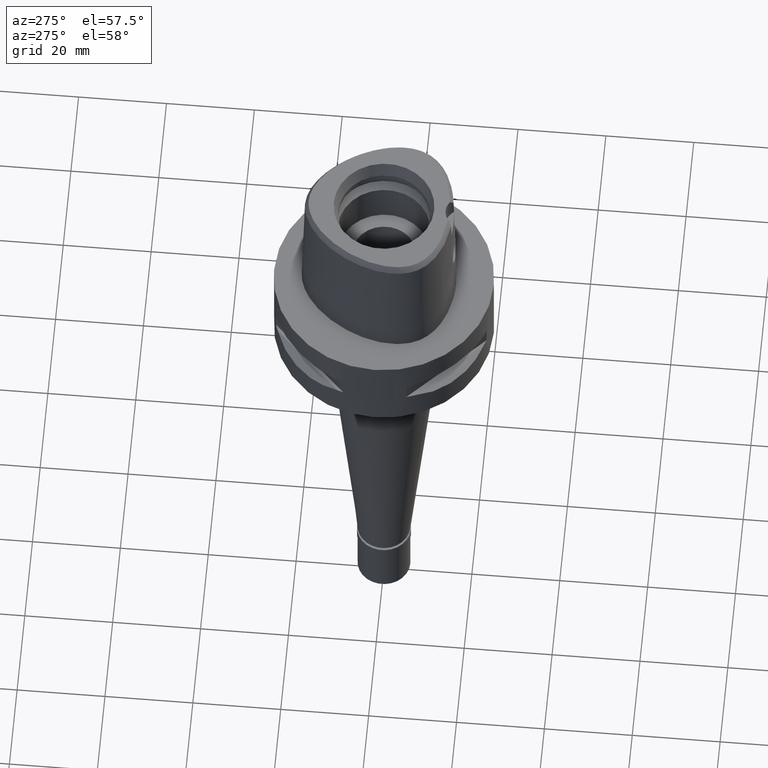
[diagram: clean part render]
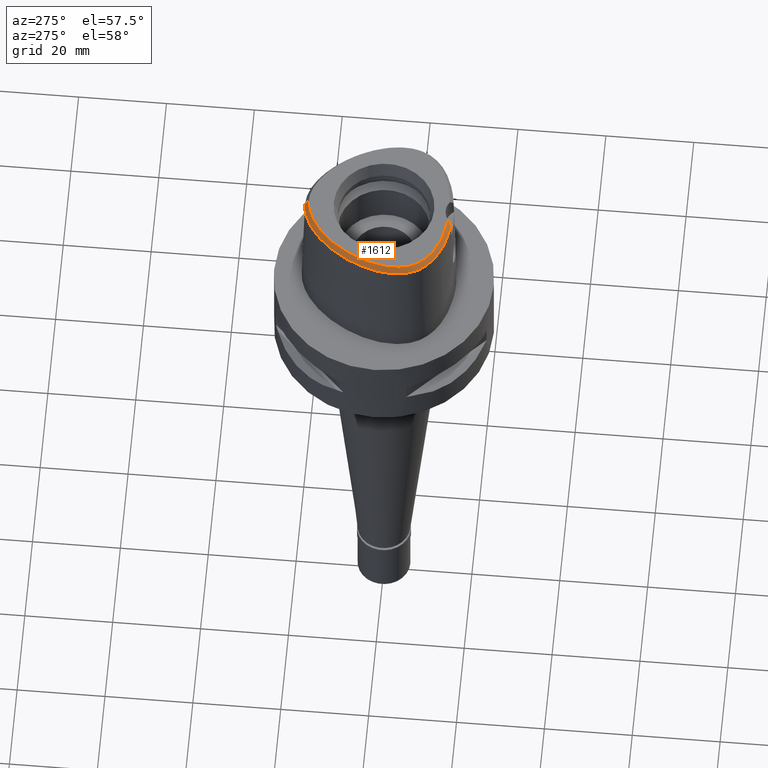
[diagram: same view with one face highlighted and labeled with its STEP entity id]
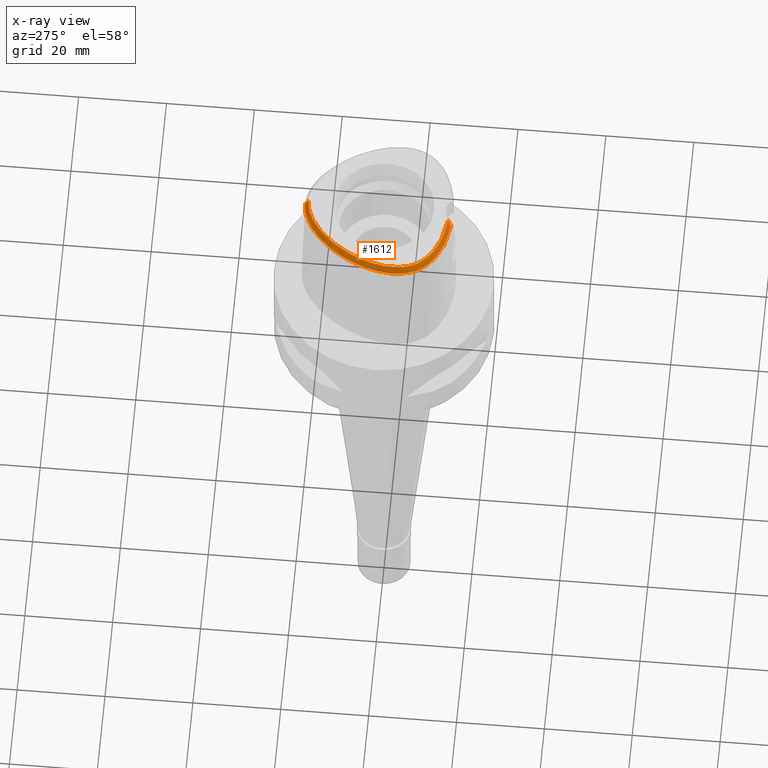
[diagram: x-ray of the same camera — body ghosted, the highlighted face saturated]
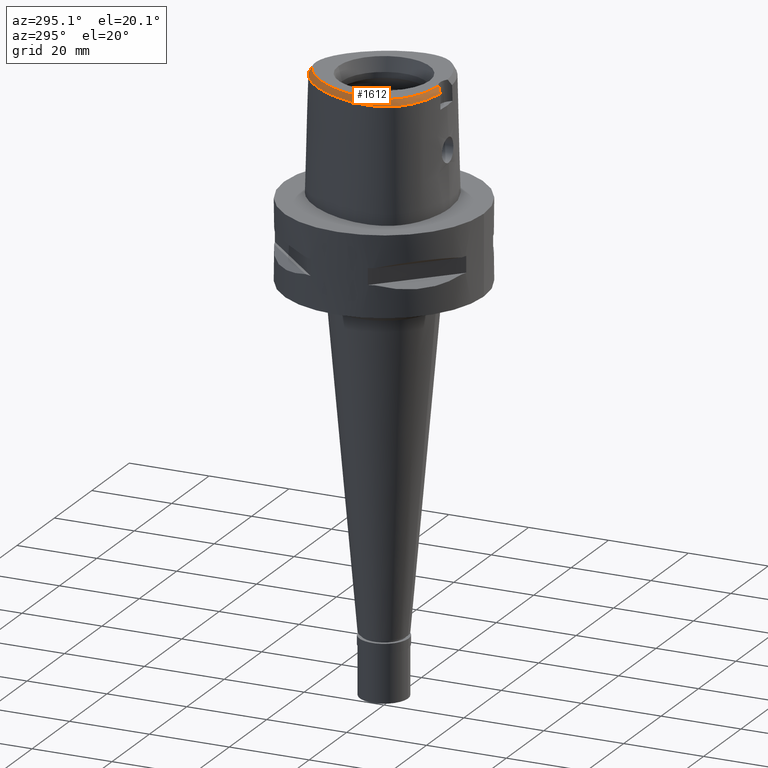
[diagram: same view with one face highlighted and labeled with its STEP entity id]
A machine part, auxiliary view. The second image highlights one B-rep face of the part: STEP entity #1612.
The next image is the same camera in x-ray: the body ghosted, the highlighted face saturated — about 0% of this face is hidden behind the body in this view.
A second angle (auxiliary view) of the same face is appended — the face is thin or edge-on in the first view.
In plain terms, the highlighted face is a freeform B-spline surface patch.
Its self-contained STEP definition (entity closure, byte-faithful):
#4 = CARTESIAN_POINT ( 'NONE',  ( -9.750168658358866480, -12.92810664733624471, 29.99999999999975486 ) ) ;
#16 = CARTESIAN_POINT ( 'NONE',  ( -16.28722263058000053, 1.905588744011000202, 28.35056743878999796 ) ) ;
#37 = CARTESIAN_POINT ( 'NONE',  ( -6.303691439121000273E-11, 17.15328888647999861, 30.00000000000000000 ) ) ;
#43 = CARTESIAN_POINT ( 'NONE',  ( -12.59173003849000061, -11.05352293352999915, 30.17009129306999782 ) ) ;
#65 = CARTESIAN_POINT ( 'NONE',  ( -11.85389994273000092, -12.83453179391999832, 28.35056449152000013 ) ) ;
#80 = CARTESIAN_POINT ( 'NONE',  ( -0.5679008307149224777, 17.14013367087309447, 29.99999999999387512 ) ) ;
#88 = CARTESIAN_POINT ( 'NONE',  ( -15.26247822636999985, -9.049129490852999780, 28.95707308115999723 ) ) ;
#96 = CARTESIAN_POINT ( 'NONE',  ( -6.303691439121000273E-11, 17.15328888647999861, 30.00000000000000000 ) ) ;
#104 = B_SPLINE_CURVE_WITH_KNOTS ( 'NONE', 3,
 ( #2876, #4342, #3874, #565, #2038, #4363, #1792, #4751, #2248, #1527, #1467, #383, #2949, #2537, #774, #4089, #2517, #4385, #1889, #3986, #2998, #726 ),
 .UNSPECIFIED., .F., .F.,
 ( 4, 1, 1, 1, 1, 1, 1, 1, 1, 1, 1, 1, 1, 1, 1, 1, 1, 1, 1, 4 ),
 ( 0.0000000000000000000, 0.03108635432772781371, 0.1191694130251493983, 0.1632109423738073717, 0.2072524717224653590, 0.2512940010712290673, 0.2733147657454522705, 0.2953355304197813336, 0.3173562950942159788, 0.3393770597685449308, 0.3834185891172029459, 0.4274601184658609054, 0.4715016478145189205, 0.5595847065118348951, 0.6476677652092563964, 0.7357508239065724265, 0.8238338826038883456, 0.9119169413012888636, 0.9559584706499574258, 1.000000000000000000 ),
 .UNSPECIFIED. ) ;
#114 = CARTESIAN_POINT ( 'NONE',  ( -11.67357936521000106, -12.54628568380000075, 28.95707339863999863 ) ) ;
#129 = CARTESIAN_POINT ( 'NONE',  ( -1.772880577021780812, 16.97196055715948049, 29.99999999999553779 ) ) ;
#137 = CARTESIAN_POINT ( 'NONE',  ( -15.61879289774000057, -6.510694683599999699, 30.17009128750999736 ) ) ;
#199 = CARTESIAN_POINT ( 'NONE',  ( -3.385290767843000204, 17.47759187830000016, 28.35056283004999855 ) ) ;
#220 = CARTESIAN_POINT ( 'NONE',  ( -0.5850065184217999592, 17.38422776575999862, 29.56358208161000078 ) ) ;
#241 = CARTESIAN_POINT ( 'NONE',  ( -0.04056532553149000409, 17.06316671231999749, 30.17009124918000040 ) ) ;
#269 = CARTESIAN_POINT ( 'NONE',  ( -9.194679903596000514, 13.74370386342999950, 28.35056650261000044 ) ) ;
#278 = CARTESIAN_POINT ( 'NONE',  ( -4.135464916807999991, -14.50502973496999992, 30.17009133634999785 ) ) ;
#280 = CARTESIAN_POINT ( 'NONE',  ( -15.71065119878993421, -6.536303815289310926, 29.99999999999440092 ) ) ;
#287 = CARTESIAN_POINT ( 'NONE',  ( -16.62226688940999964, -1.595571416314999880, 28.95707264753000132 ) ) ;
#299 = CARTESIAN_POINT ( 'NONE',  ( -13.18915979441350217, -10.65722997876278733, 29.99999999999581846 ) ) ;
#308 = CARTESIAN_POINT ( 'NONE',  ( -15.59672754435000108, 0.4689898295951999696, 30.17009086235000126 ) ) ;
#324 = CARTESIAN_POINT ( 'NONE',  ( -13.66338899148611574, -10.18351204678590172, 29.99999999999864997 ) ) ;
#329 = EDGE_CURVE ( 'NONE', #4413, #1584, #4509, .T. ) ;
#338 = CARTESIAN_POINT ( 'NONE',  ( -10.20617462999999958, 11.18135079161999990, 30.17009133200999926 ) ) ;
#354 = CARTESIAN_POINT ( 'NONE',  ( -11.92713521269310917, 9.060544494663155035, 29.99999999999641886 ) ) ;
#362 = CARTESIAN_POINT ( 'NONE',  ( -16.14364632647000164, -0.5767047966978999796, 29.56358242700000005 ) ) ;
#379 = CARTESIAN_POINT ( 'NONE',  ( -16.12543283908635772, -3.535877041748166416, 30.00000000000415668 ) ) ;
#383 = CARTESIAN_POINT ( 'NONE',  ( -16.85489160761476413, -5.354527567564947965, 28.52071192347010253 ) ) ;
#387 = CARTESIAN_POINT ( 'NONE',  ( -12.41162228526999911, 9.387611581618999779, 28.95707381572000116 ) ) ;
#415 = CARTESIAN_POINT ( 'NONE',  ( -15.20031377707999987, -9.761880037032998558, 28.35056374275000124 ) ) ;
#432 = CARTESIAN_POINT ( 'NONE',  ( -0.1909045559980127038, 17.15328888648249972, 29.99999999999878142 ) ) ;
#438 = CARTESIAN_POINT ( 'NONE',  ( -12.38612914742000015, -12.06794189444000054, 28.95707352258999734 ) ) ;
#460 = CARTESIAN_POINT ( 'NONE',  ( -10.14253850859999773, -13.76532527602000044, 28.35056359931000003 ) ) ;
#487 = CARTESIAN_POINT ( 'NONE',  ( -14.64566781396000117, -9.368283635983999602, 29.56358210764999939 ) ) ;
#507 = B_SPLINE_CURVE_WITH_KNOTS ( 'NONE', 3,
 ( #1463, #4382, #4771, #4746, #3613, #1035, #2534, #2514, #4, #3240, #1417, #1857, #3662, #299, #324, #4699, #3332, #694, #1787, #2946, #2898, #280, #673, #4059, #1494, #379, #4411, #1082, #4442, #2196, #2149, #1137, #4723, #3286, #2171, #1765, #354, #2561, #3637, #748, #1811, #2973, #2616, #770, #1442, #3594, #4031, #720, #1834, #129, #2709, #80, #432, #37 ),
 .UNSPECIFIED., .F., .F.,
 ( 4, 1, 1, 1, 1, 1, 1, 1, 1, 1, 1, 1, 1, 1, 1, 1, 1, 1, 1, 1, 1, 1, 1, 1, 1, 1, 1, 1, 1, 1, 1, 1, 1, 1, 1, 1, 1, 1, 1, 1, 1, 1, 1, 1, 1, 1, 1, 1, 1, 1, 1, 4 ),
 ( 0.0000000000000000000, 0.005566907331700066131, 0.02545556918509994659, 0.04534423103860008020, 0.06523289289190004059, 0.08512155474529992105, 0.1050102165987000236, 0.1248988784521999351, 0.1447875403055000065, 0.1646762021588999980, 0.1845648640122999895, 0.2044535258655999499, 0.2243421877191000835, 0.2442308495724999640, 0.2641195114257999244, 0.2840081732792000269, 0.3038968351325999073, 0.3237854969860000098, 0.3436741588394000013, 0.3635628206927999928, 0.3834514825461999843, 0.4033401443995000557, 0.4232288062529999673, 0.4431174681064000698, 0.4630061299597000302, 0.4828947918130999106, 0.5027834536666000442, 0.5226721155199000046, 0.5425607773732999961, 0.5624494392267000986, 0.5823381010799999480, 0.6022267629334999706, 0.6221154247869000731, 0.6420040866403000646, 0.6618927484936000250, 0.6817814103470000164, 0.7016700722005000390, 0.7215587340537999994, 0.7414473959071999909, 0.7613360577605999824, 0.7812247196139999739, 0.8011133814673999654, 0.8210020433207999568, 0.8408907051741000283, 0.8607793670275000197, 0.8806680288810000423, 0.9005566907343299787, 0.9204453525877199782, 0.9403340144411099777, 0.9602226762944999772, 0.9801113381478899766, 1.000000000000000000 ),
 .UNSPECIFIED. ) ;
#514 = CARTESIAN_POINT ( 'NONE',  ( -16.91503079138000132, -5.283684062489000688, 28.35056394553999937 ) ) ;
#539 = CARTESIAN_POINT ( 'NONE',  ( -2.458174493914000003, -15.72932377072000243, 28.35056478835000249 ) ) ;
#565 = CARTESIAN_POINT ( 'NONE',  ( -8.702202515497507562, -14.36510996955669306, 28.52071192347010253 ) ) ;
#570 = CARTESIAN_POINT ( 'NONE',  ( 0.3141626231465000085, 17.39349794818999939, 29.56358214572999898 ) ) ;
#595 = CARTESIAN_POINT ( 'NONE',  ( -8.725668799699999312, 13.25144213196000109, 29.56358283787000119 ) ) ;
#614 = CARTESIAN_POINT ( 'NONE',  ( 0.3267101482912000421, 17.73310735096999835, 28.95707301619999896 ) ) ;
#636 = CARTESIAN_POINT ( 'NONE',  ( 0.3392576734359000201, 18.07271675375999820, 28.35056388667999983 ) ) ;
#649 = CARTESIAN_POINT ( 'NONE',  ( -2.104670796471000305, -15.07625097300999961, 29.56358238684000028 ) ) ;
#654 = VECTOR ( 'NONE', #4149, 1000.000000000000000 ) ;
#660 = CARTESIAN_POINT ( 'NONE',  ( -6.372033216298000013, 15.58019351054999824, 28.95707547717000097 ) ) ;
#673 = CARTESIAN_POINT ( 'NONE',  ( -15.87300767660060075, -5.872112237378923183, 30.00000000000161648 ) ) ;
#679 = CARTESIAN_POINT ( 'NONE',  ( -13.92516041780000080, 5.335663763953999883, 30.17009117321000033 ) ) ;
#692 = CARTESIAN_POINT ( 'NONE',  ( -1.990752365577999949, -15.76580334117999982, 28.35056477635000149 ) ) ;
#694 = CARTESIAN_POINT ( 'NONE',  ( -14.76322153899807965, -8.744676018998095657, 29.99999999999673861 ) ) ;
#704 = CARTESIAN_POINT ( 'NONE',  ( -15.90508132339999925, -5.140444925051000702, 30.17009126920000028 ) ) ;
#720 = CARTESIAN_POINT ( 'NONE',  ( -3.077178008231346240, 16.60571267458161770, 30.00000000000361666 ) ) ;
#726 = CARTESIAN_POINT ( 'NONE',  ( -3.205766279363000342E-11, 17.98202997909999823, 28.52071728569000086 ) ) ;
#733 = CARTESIAN_POINT ( 'NONE',  ( -10.46613008130000111, 11.40041467054999913, 29.56358200010999937 ) ) ;
#748 = CARTESIAN_POINT ( 'NONE',  ( -9.420854217683539034, 12.20577134109779749, 29.99999999999673861 ) ) ;
#756 = CARTESIAN_POINT ( 'NONE',  ( -13.30021217507000131, 6.590967065627999943, 30.17009123907999779 ) ) ;
#770 = CARTESIAN_POINT ( 'NONE',  ( -6.047371482395665687, 15.09400374235349851, 29.99999999999559819 ) ) ;
#774 = CARTESIAN_POINT ( 'NONE',  ( -15.84228689412657154, 3.460033471612096623, 28.52071192347010253 ) ) ;
#781 = CARTESIAN_POINT ( 'NONE',  ( -16.47914646006999817, -0.5217488892669999156, 28.95707368838000306 ) ) ;
#809 = CARTESIAN_POINT ( 'NONE',  ( -14.08979716640000035, -10.58360405131000093, 28.95707295601999931 ) ) ;
#831 = CARTESIAN_POINT ( 'NONE',  ( -10.87941759480000137, -13.01097623413000015, 28.95707295133999892 ) ) ;
#855 = CARTESIAN_POINT ( 'NONE',  ( -16.77823083325000297, -6.061035948745999491, 28.35056366333000000 ) ) ;
#883 = CARTESIAN_POINT ( 'NONE',  ( -13.12411093707000020, -10.58750131253000148, 30.17009129254000044 ) ) ;
#910 = CARTESIAN_POINT ( 'NONE',  ( -16.60143409654000024, -6.784644752077999996, 28.35056376788000065 ) ) ;
#937 = CARTESIAN_POINT ( 'NONE',  ( -1.288245597283999899, 17.99449728200000109, 28.35056357884999656 ) ) ;
#958 = CARTESIAN_POINT ( 'NONE',  ( -7.638856227166999524, 13.77154131146000005, 30.17009122028999712 ) ) ;
#980 = CARTESIAN_POINT ( 'NONE',  ( -0.04215797440776000021, 17.40317387378999925, 29.56358221267000275 ) ) ;
#989 = CARTESIAN_POINT ( 'NONE',  ( -2.078164520416000194, -14.73749453028000111, 30.17009118129000100 ) ) ;
#998 = CARTESIAN_POINT ( 'NONE',  ( -5.994422302628000132, 15.01471090691999954, 30.17009087390000133 ) ) ;
#1019 = CARTESIAN_POINT ( 'NONE',  ( -3.868126003211000086, 16.56046068171999863, 29.56358239411999733 ) ) ;
#1035 = CARTESIAN_POINT ( 'NONE',  ( -6.650243356160426167, -14.05992414833709070, 30.00000000000564171 ) ) ;
#1044 = CARTESIAN_POINT ( 'NONE',  ( -14.47053885729000022, 4.076825961071000037, 30.17009129645999721 ) ) ;
#1056 = CARTESIAN_POINT ( 'NONE',  ( -1.941875468639000069, -15.08799223866000006, 29.56358238112999715 ) ) ;
#1064 = CARTESIAN_POINT ( 'NONE',  ( -15.80814619286000067, -0.6316607041289000746, 30.17009116563000148 ) ) ;
#1082 = CARTESIAN_POINT ( 'NONE',  ( -16.04083576397309585, -1.656498942829526699, 29.99999999999716849 ) ) ;
#1093 = CARTESIAN_POINT ( 'NONE',  ( -17.00740928939000085, -4.447861971395998815, 28.35056487828999749 ) ) ;
#1122 = CARTESIAN_POINT ( 'NONE',  ( -13.60040330268000019, 6.750486472019999518, 29.56358223857000311 ) ) ;
#1137 = CARTESIAN_POINT ( 'NONE',  ( -15.02099409651190953, 2.867135356160185111, 30.00000000000098410 ) ) ;
#1148 = CARTESIAN_POINT ( 'NONE',  ( -14.20078555791000063, 7.069525284804999643, 28.35056423755000310 ) ) ;
#1168 = CARTESIAN_POINT ( 'NONE',  ( -3.168920966622999824, -15.55911077538999976, 28.52071192346999950 ) ) ;
#1169 = CARTESIAN_POINT ( 'NONE',  ( -15.86316109308000222, -8.674306124975998955, 28.35056350236999734 ) ) ;
#1195 = CARTESIAN_POINT ( 'NONE',  ( -11.04178845849999924, -13.30969061493000005, 28.35056378408000199 ) ) ;
#1211 = EDGE_CURVE ( 'NONE', #4376, #4413, #104, .T. ) ;
#1219 = CARTESIAN_POINT ( 'NONE',  ( -15.94633996400000164, -6.602011373093000124, 29.56358211429999727 ) ) ;
#1240 = CARTESIAN_POINT ( 'NONE',  ( -14.00672323263000152, -9.646477064127001455, 30.17009122300000001 ) ) ;
#1266 = CARTESIAN_POINT ( 'NONE',  ( -14.33777277256000104, -10.81627561620999955, 28.35056379148000261 ) ) ;
#1294 = CARTESIAN_POINT ( 'NONE',  ( -4.001840967781999936, 16.87308023893000097, 28.95707360979000100 ) ) ;
#1313 = CARTESIAN_POINT ( 'NONE',  ( -5.381264159497999522, 15.79774021276000084, 29.56358385925000221 ) ) ;
#1336 = CARTESIAN_POINT ( 'NONE',  ( 0.5143844921644999957, 18.06362170803000211, 28.35056353439999910 ) ) ;
#1353 = CARTESIAN_POINT ( 'NONE',  ( -2.427931483561000192, -15.39087110890999988, 28.95707358632999728 ) ) ;
#1363 = CARTESIAN_POINT ( 'NONE',  ( -1.753277151835000103, 16.87863418102000068, 30.17009124335000081 ) ) ;
#1371 = CARTESIAN_POINT ( 'NONE',  ( -2.157683348582000171, -15.75376385849000194, 28.35056479792000061 ) ) ;
#1381 = CARTESIAN_POINT ( 'NONE',  ( -6.183227759462999629, 15.29745220874000111, 29.56358317553999981 ) ) ;
#1404 = CARTESIAN_POINT ( 'NONE',  ( -16.01758982928999941, -2.634218457544000191, 30.17009128048999855 ) ) ;
#1415 = CARTESIAN_POINT ( 'NONE',  ( -2.367445462855000127, -14.71396578531000010, 30.17009118228000020 ) ) ;
#1417 = CARTESIAN_POINT ( 'NONE',  ( -11.36350786442219807, -12.05063008427935678, 29.99999999999495159 ) ) ;
#1426 = CARTESIAN_POINT ( 'NONE',  ( -16.96039534063000076, -1.560139308751999909, 28.35056330359999777 ) ) ;
#1440 = CARTESIAN_POINT ( 'NONE',  ( -4.296258809577000015, -15.51211991593000050, 28.35056329427000321 ) ) ;
#1442 = CARTESIAN_POINT ( 'NONE',  ( -5.257871200567935333, 15.58649213537116651, 29.99999999999723244 ) ) ;
#1448 = CARTESIAN_POINT ( 'NONE',  ( -16.03009387987000167, -3.534406224759000015, 30.17009125223999888 ) ) ;
#1463 = CARTESIAN_POINT ( 'NONE',  ( -2.406542353497000075, -14.80491723099000012, 30.00000000000000000 ) ) ;
#1467 = CARTESIAN_POINT ( 'NONE',  ( -16.47905549557153293, -6.962316292880090352, 28.52071192347010253 ) ) ;
#1474 = CARTESIAN_POINT ( 'NONE',  ( -16.24173114606000112, -5.188191304196999809, 29.56358216130999850 ) ) ;
#1494 = CARTESIAN_POINT ( 'NONE',  ( -16.08550869467269351, -4.376322360225803898, 29.99999999999931788 ) ) ;
#1506 = CARTESIAN_POINT ( 'NONE',  ( -15.92857548089999753, 0.5428261305200999809, 29.56358320517999871 ) ) ;
#1511 = ORIENTED_EDGE ( 'NONE', *, *, #1211, .F. ) ;
#1527 = CARTESIAN_POINT ( 'NONE',  ( -16.01658395503630317, -8.155509241189536240, 28.52071192347010253 ) ) ;
#1531 = CARTESIAN_POINT ( 'NONE',  ( -12.80696139205999984, -11.31675394166999915, 29.56358210003000053 ) ) ;
#1552 = CARTESIAN_POINT ( 'NONE',  ( -13.02219274563000084, -11.57998494979999826, 28.95707290697999881 ) ) ;
#1555 = CARTESIAN_POINT ( 'NONE',  ( -2.935844349928218300, -15.25651563085547657, 29.10537812873124253 ) ) ;
#1578 = CARTESIAN_POINT ( 'NONE',  ( -14.36834483240000004, -9.171485435458999191, 30.17009129010000024 ) ) ;
#1584 = VERTEX_POINT ( 'NONE', #96 ) ;
#1603 = CARTESIAN_POINT ( 'NONE',  ( -16.38830917707000268, -7.458600288350000440, 28.35056413536999642 ) ) ;
#1612 = ADVANCED_FACE ( 'NONE', ( #3226 ), #3328, .F. ) ;
#1623 = CARTESIAN_POINT ( 'NONE',  ( -15.55281853165999983, -9.226182930898000123, 28.35056398940000122 ) ) ;
#1654 = CARTESIAN_POINT ( 'NONE',  ( -2.406542353497000075, -14.80491723099000012, 30.00000000000000000 ) ) ;
#1659 = CARTESIAN_POINT ( 'NONE',  ( 0.3016150980018000305, 17.05388854539999954, 30.17009127525999901 ) ) ;
#1681 = CARTESIAN_POINT ( 'NONE',  ( -3.271995563427000153, 17.15699583178999887, 28.95707234810999964 ) ) ;
#1702 = CARTESIAN_POINT ( 'NONE',  ( 0.4769160736686000046, 17.38511655648999721, 29.56358205252000104 ) ) ;
#1715 = CARTESIAN_POINT ( 'NONE',  ( -6.625079732143000832, -13.96796592275000037, 30.17009086416999963 ) ) ;
#1727 = CARTESIAN_POINT ( 'NONE',  ( -4.455721672483000440, 15.91301060187000083, 30.17009074082000097 ) ) ;
#1753 = CARTESIAN_POINT ( 'NONE',  ( -9.599089572720000518, 12.37331098712999911, 29.56358262412999949 ) ) ;
#1763 = CARTESIAN_POINT ( 'NONE',  ( -3.112072462493000291, -14.64097510100000044, 30.17009121154000084 ) ) ;
#1765 = CARTESIAN_POINT ( 'NONE',  ( -12.68647747557192318, 7.869569494475533666, 29.99999999999645439 ) ) ;
#1771 = CARTESIAN_POINT ( 'NONE',  ( -16.69687206505999910, -2.603473872068999828, 28.95707298413999808 ) ) ;
#1787 = CARTESIAN_POINT ( 'NONE',  ( -15.04149970408389692, -8.249836848500672559, 30.00000000000220268 ) ) ;
#1792 = CARTESIAN_POINT ( 'NONE',  ( -14.26907056455886469, -10.79012254419018824, 28.52071192347010253 ) ) ;
#1796 = CARTESIAN_POINT ( 'NONE',  ( -16.26042341746000019, 0.6166624314450001032, 28.95707554799999883 ) ) ;
#1809 = CARTESIAN_POINT ( 'NONE',  ( -5.417784138995999754, -14.26388243611999940, 30.17009116238000033 ) ) ;
#1811 = CARTESIAN_POINT ( 'NONE',  ( -8.556928701964805484, 13.07433695898811798, 29.99999999999978684 ) ) ;
#1818 = CARTESIAN_POINT ( 'NONE',  ( -15.89596364830000041, 3.165732167088999738, 28.35056387298999780 ) ) ;
#1834 = CARTESIAN_POINT ( 'NONE',  ( -2.411640998825572257, 16.81591728050808143, 29.99999999999915445 ) ) ;
#1842 = CARTESIAN_POINT ( 'NONE',  ( -16.81464659367999914, -0.4667929818359999872, 28.35056494974999808 ) ) ;
#1857 = CARTESIAN_POINT ( 'NONE',  ( -12.04571048959732238, -11.59259605427076423, 29.99999999999928235 ) ) ;
#1867 = CARTESIAN_POINT ( 'NONE',  ( -15.95998387158000043, 1.813473467849999965, 28.95707526218000183 ) ) ;
#1889 = CARTESIAN_POINT ( 'NONE',  ( -4.422474562381330188, 17.08283562089888719, 28.52071192347010253 ) ) ;
#1893 = CARTESIAN_POINT ( 'NONE',  ( -13.58801157844000151, -11.08477635023000119, 28.95707291024999819 ) ) ;
#1914 = CARTESIAN_POINT ( 'NONE',  ( -12.58409796694000171, -12.34437696250000016, 28.35056468754000036 ) ) ;
#1937 = CARTESIAN_POINT ( 'NONE',  ( -16.11251713348000081, -5.922098823745000296, 29.56358208664000387 ) ) ;
#1965 = CARTESIAN_POINT ( 'NONE',  ( -13.84182156024000143, -10.35093248640999875, 29.56358212054999868 ) ) ;
#1988 = CARTESIAN_POINT ( 'NONE',  ( -14.95676927266000078, -8.206065210445999014, 30.17009131490000229 ) ) ;
#2038 = CARTESIAN_POINT ( 'NONE',  ( -11.33338053122528954, -13.08225253589918857, 28.52071192347010253 ) ) ;
#2043 = CARTESIAN_POINT ( 'NONE',  ( -1.823178775697000153, 17.21141608924000010, 29.56358222761000221 ) ) ;
#2067 = CARTESIAN_POINT ( 'NONE',  ( -0.04375062328401999739, 17.74318103526000101, 28.95707317615000065 ) ) ;
#2089 = CARTESIAN_POINT ( 'NONE',  ( 0.4956502829164999291, 17.72436913226000144, 28.95707279346000007 ) ) ;
#2114 = CARTESIAN_POINT ( 'NONE',  ( -5.552748793730000187, 16.09132097779999881, 28.95707711106999938 ) ) ;
#2127 = CARTESIAN_POINT ( 'NONE',  ( -2.131177072525999527, -15.41500741575000077, 28.95707359237999867 ) ) ;
#2135 = CARTESIAN_POINT ( 'NONE',  ( -8.299810657005998848, 14.54829527029000147, 28.35056441981000219 ) ) ;
#2147 = CARTESIAN_POINT ( 'NONE',  ( -5.561071430013999617, -14.92851829986000034, 28.95707370836999672 ) ) ;
#2149 = CARTESIAN_POINT ( 'NONE',  ( -15.39727819200849623, 1.655076005305696762, 30.00000000000181188 ) ) ;
#2156 = CARTESIAN_POINT ( 'NONE',  ( -15.25249887033000107, 2.946139919272999563, 29.56358214211000046 ) ) ;
#2171 = CARTESIAN_POINT ( 'NONE',  ( -13.38439869301779694, 6.635703175839384294, 29.99999999999691980 ) ) ;
#2179 = CARTESIAN_POINT ( 'NONE',  ( -16.71001057840999948, -3.544895462734000358, 28.95707315742000176 ) ) ;
#2196 = CARTESIAN_POINT ( 'NONE',  ( -15.68979199461806573, 0.4896967076515297834, 29.99999999999704769 ) ) ;
#2208 = CARTESIAN_POINT ( 'NONE',  ( -11.31421315120000060, 10.33856642505000067, 29.56358233933000079 ) ) ;
#2230 = CARTESIAN_POINT ( 'NONE',  ( -14.23334042343000050, 5.479144743298999920, 29.56358240756000200 ) ) ;
#2234 = EDGE_CURVE ( 'NONE', #3590, #4376, #2298, .T. ) ;
#2248 = CARTESIAN_POINT ( 'NONE',  ( -15.58740380353288835, -8.999391780896800697, 28.52071192347010253 ) ) ;
#2254 = CARTESIAN_POINT ( 'NONE',  ( -15.94600998695999650, -1.666435631441999909, 30.17009133539000132 ) ) ;
#2283 = CARTESIAN_POINT ( 'NONE',  ( -13.23742409921000096, -11.84321595792999915, 28.35056371393999797 ) ) ;
#2298 = B_SPLINE_CURVE_WITH_KNOTS ( 'NONE', 3,
 ( #1654, #2360, #1555, #3133 ),
 .UNSPECIFIED., .F., .F.,
 ( 4, 4 ),
 ( 0.0000000000000000000, 1.000000000000000000 ),
 .UNSPECIFIED. ) ;
#2304 = CARTESIAN_POINT ( 'NONE',  ( -9.709707140835000416, -12.84177193993000010, 30.17009130490000146 ) ) ;
#2326 = CARTESIAN_POINT ( 'NONE',  ( -15.42630908671999990, -7.119121252545999923, 30.17009124961999689 ) ) ;
#2358 = CARTESIAN_POINT ( 'NONE',  ( -14.53304657226999907, -10.07719583194999835, 28.95707333663000327 ) ) ;
#2360 = CARTESIAN_POINT ( 'NONE',  ( -2.674237912581472365, -15.00654602978905316, 29.59847415424124151 ) ) ;
#2414 = CARTESIAN_POINT ( 'NONE',  ( -1.194043383064000041, 17.32094993377000236, 29.56358206429000290 ) ) ;
#2440 = CARTESIAN_POINT ( 'NONE',  ( -0.6325515749211999550, 18.06268441261000035, 28.35056364431999754 ) ) ;
#2458 = CARTESIAN_POINT ( 'NONE',  ( -0.5612339901722001034, 17.04499944233999997, 30.17009130025000019 ) ) ;
#2477 = CARTESIAN_POINT ( 'NONE',  ( -0.6087790466714999571, 17.72345608919000171, 28.95707286297000138 ) ) ;
#2497 = CARTESIAN_POINT ( 'NONE',  ( -7.215369591293001150, 14.98163774888999988, 28.95707260359000301 ) ) ;
#2512 = CARTESIAN_POINT ( 'NONE',  ( -5.489427784504999686, -14.59620036798999898, 29.56358243536999808 ) ) ;
#2514 = CARTESIAN_POINT ( 'NONE',  ( -8.809985523415241104, -13.33678107331204643, 29.99999999999841194 ) ) ;
#2517 = CARTESIAN_POINT ( 'NONE',  ( -10.91764528035087167, 11.98972044748424892, 28.52071192347010253 ) ) ;
#2520 = CARTESIAN_POINT ( 'NONE',  ( -14.78590234868000053, 4.203750981915000295, 29.56358209134000248 ) ) ;
#2532 = CARTESIAN_POINT ( 'NONE',  ( -7.854364407618998456, -13.94861126986000066, 29.56358300964000208 ) ) ;
#2534 = CARTESIAN_POINT ( 'NONE',  ( -7.776737509123035963, -13.71663015821899201, 30.00000000000408917 ) ) ;
#2537 = CARTESIAN_POINT ( 'NONE',  ( -16.79165457291457031, -0.3537785057483182616, 28.52071192347010253 ) ) ;
#2540 = CARTESIAN_POINT ( 'NONE',  ( -16.28413843819000206, -1.631003523879000161, 29.56358199145999777 ) ) ;
#2561 = CARTESIAN_POINT ( 'NONE',  ( -11.11900396222587162, 10.19116357425611774, 29.99999999999712230 ) ) ;
#2571 = CARTESIAN_POINT ( 'NONE',  ( -14.93076648133999917, 2.836343795365000364, 30.17009127667999735 ) ) ;
#2602 = CARTESIAN_POINT ( 'NONE',  ( -9.846791102294000453, 12.60614821842999866, 28.95707415945000207 ) ) ;
#2616 = CARTESIAN_POINT ( 'NONE',  ( -6.862723739080148988, 14.51536572209086451, 29.99999999999930012 ) ) ;
#2625 = CARTESIAN_POINT ( 'NONE',  ( -16.59227135401000197, 0.6904987323700000346, 28.35056789082000250 ) ) ;
#2649 = CARTESIAN_POINT ( 'NONE',  ( -15.77966028358999928, -5.852630261244999410, 30.17009129829999736 ) ) ;
#2675 = CARTESIAN_POINT ( 'NONE',  ( -9.853984263424001355, -13.14962305195999903, 29.56358206970000069 ) ) ;
#2682 = CARTESIAN_POINT ( 'NONE',  ( -3.205766279363000342E-11, 17.98202997909999823, 28.52071728569000086 ) ) ;
#2694 = CARTESIAN_POINT ( 'NONE',  ( -15.51693061455999967, -7.818107010273000590, 29.56358223894000048 ) ) ;
#2709 = CARTESIAN_POINT ( 'NONE',  ( -1.160151454488510980, 17.07862209883453986, 29.99999999999336353 ) ) ;
#2719 = CARTESIAN_POINT ( 'NONE',  ( -14.79620824210000229, -10.29255521586000022, 28.35056439343999912 ) ) ;
#2749 = CARTESIAN_POINT ( 'NONE',  ( -15.20474521561000003, -7.683288474457000028, 30.17009123892999867 ) ) ;
#2775 = CARTESIAN_POINT ( 'NONE',  ( -4.915056219239000157, 16.82374733381999832, 28.35056906935000143 ) ) ;
#2794 = CARTESIAN_POINT ( 'NONE',  ( -7.010290106169000168, 14.71047951299000189, 29.56358197307000069 ) ) ;
#2819 = CARTESIAN_POINT ( 'NONE',  ( -3.158700359011999748, 16.83639978527999759, 29.56358186616999717 ) ) ;
#2823 = EDGE_LOOP ( 'NONE', ( #3304, #3894, #1511, #2899 ) ) ;
#2830 = CARTESIAN_POINT ( 'NONE',  ( -1.966313917109000275, -15.42689778992000171, 28.95707357874000110 ) ) ;
#2839 = CARTESIAN_POINT ( 'NONE',  ( -8.960174351647999913, 13.49757299770000074, 28.95707467024000081 ) ) ;
#2857 = CARTESIAN_POINT ( 'NONE',  ( 0.4581818644207000246, 17.04586398072000009, 30.17009131158000201 ) ) ;
#2876 = CARTESIAN_POINT ( 'NONE',  ( -3.168920966622999824, -15.55911077538999976, 28.52071192346999950 ) ) ;
#2883 = CARTESIAN_POINT ( 'NONE',  ( -12.12987117784000013, 9.197407303381000432, 29.56358248029000180 ) ) ;
#2895 = CARTESIAN_POINT ( 'NONE',  ( -9.026773227302999913, -13.87970436716000044, 28.95707301248999954 ) ) ;
#2898 = CARTESIAN_POINT ( 'NONE',  ( -15.51623783590942551, -7.150856098906569258, 29.99999999999812417 ) ) ;
#2899 = ORIENTED_EDGE ( 'NONE', *, *, #2234, .F. ) ;
#2907 = CARTESIAN_POINT ( 'NONE',  ( -17.04996892768999928, -3.550140081721000040, 28.35056411001999876 ) ) ;
#2920 = CARTESIAN_POINT ( 'NONE',  ( -2.397688473207999937, -15.05241844710999999, 29.56358238430999918 ) ) ;
#2928 = CARTESIAN_POINT ( 'NONE',  ( -13.47887544269999971, 8.345798006725001272, 28.35056387280999957 ) ) ;
#2946 = CARTESIAN_POINT ( 'NONE',  ( -15.29229544369630744, -7.721097396977541827, 29.99999999999276312 ) ) ;
#2949 = CARTESIAN_POINT ( 'NONE',  ( -16.99625270563491952, -3.273868231553030306, 28.52071192347010253 ) ) ;
#2955 = CARTESIAN_POINT ( 'NONE',  ( -13.18750519962000034, 8.170685470939000439, 28.95707300743999824 ) ) ;
#2973 = CARTESIAN_POINT ( 'NONE',  ( -7.700642921101156446, 13.84415306341863783, 29.99999999999966960 ) ) ;
#2982 = CARTESIAN_POINT ( 'NONE',  ( -10.09449263187000057, 12.83898544973000000, 28.35056569477999844 ) ) ;
#2998 = CARTESIAN_POINT ( 'NONE',  ( -0.6295828121023612223, 17.98203011042244626, 28.52071192347010253 ) ) ;
#3003 = CARTESIAN_POINT ( 'NONE',  ( -13.81996189911999906, -11.33341386909000015, 28.35056371910999928 ) ) ;
#3025 = CARTESIAN_POINT ( 'NONE',  ( -10.55467586740999941, -12.41354747253000035, 30.17009128583999811 ) ) ;
#3053 = CARTESIAN_POINT ( 'NONE',  ( -10.71704673110999906, -12.71226185333000025, 29.56358211859000207 ) ) ;
#3078 = CARTESIAN_POINT ( 'NONE',  ( -15.82911601351000286, -7.952925546087999287, 28.95707323894999874 ) ) ;
#3103 = CARTESIAN_POINT ( 'NONE',  ( -14.26988490245000030, -9.861836448038001635, 29.56358227980999942 ) ) ;
#3133 = CARTESIAN_POINT ( 'NONE',  ( -3.168920966622999824, -15.55911077538999976, 28.52071192346999950 ) ) ;
#3138 = CARTESIAN_POINT ( 'NONE',  ( -3.045405154596999786, 16.51580373876999985, 30.17009138423000181 ) ) ;
#3159 = CARTESIAN_POINT ( 'NONE',  ( -3.734411038639000147, 16.24784112450999984, 30.17009117845000077 ) ) ;
#3179 = CARTESIAN_POINT ( 'NONE',  ( -2.661844822511000075, 17.70616950616999929, 28.35056367271999989 ) ) ;
#3191 = CARTESIAN_POINT ( 'NONE',  ( -4.189062881064000265, -14.84072646195999923, 29.56358198898999845 ) ) ;
#3204 = CARTESIAN_POINT ( 'NONE',  ( -6.560838673133000398, 15.86293481236999980, 28.35056777879999856 ) ) ;
#3218 = CARTESIAN_POINT ( 'NONE',  ( -6.804535940872999511, -14.62377267435999961, 28.95707553690999703 ) ) ;
#3226 = FACE_OUTER_BOUND ( 'NONE', #2823, .T. ) ;
#3240 = CARTESIAN_POINT ( 'NONE',  ( -10.60021164902964408, -12.49731984708582821, 29.99999999999583977 ) ) ;
#3246 = CARTESIAN_POINT ( 'NONE',  ( -16.35723094716999881, -2.618846164807000054, 29.56358213230999610 ) ) ;
#3269 = CARTESIAN_POINT ( 'NONE',  ( -17.03651318293999850, -2.588101579331000046, 28.35056383595999918 ) ) ;
#3283 = CARTESIAN_POINT ( 'NONE',  ( -5.632715075522000348, -15.26083623172999992, 28.35056498135999803 ) ) ;
#3286 = CARTESIAN_POINT ( 'NONE',  ( -14.01158736113309189, 5.375902008631502582, 29.99999999999153033 ) ) ;
#3293 = CARTESIAN_POINT ( 'NONE',  ( -15.30550635358999934, 1.629242915529000024, 30.17009090896999979 ) ) ;
#3304 = ORIENTED_EDGE ( 'NONE', *, *, #3444, .T. ) ;
#3315 = CARTESIAN_POINT ( 'NONE',  ( -16.32943076970000007, -4.395250746327000080, 29.56358240810000026 ) ) ;
#3328 = B_SPLINE_SURFACE_WITH_KNOTS ( 'NONE', 3, 3, ( 
 ( #2857, #1702, #2089, #1336 ),
 ( #1659, #570, #614, #636 ),
 ( #241, #980, #2067, #3946 ),
 ( #2458, #220, #2477, #2440 ),
 ( #4323, #2414, #4284, #937 ),
 ( #1363, #2043, #4302, #4688 ),
 ( #3533, #3878, #3515, #3179 ),
 ( #3138, #2819, #1681, #199 ),
 ( #3159, #1019, #1294, #4258 ),
 ( #1727, #4624, #4645, #2775 ),
 ( #3926, #1313, #2114, #3553 ),
 ( #998, #1381, #660, #3204 ),
 ( #4670, #2794, #2497, #3972 ),
 ( #958, #3903, #3579, #2135 ),
 ( #3601, #595, #2839, #269 ),
 ( #4603, #1753, #2602, #2982 ),
 ( #338, #733, #4756, #4041 ),
 ( #3990, #2208, #4068, #3694 ),
 ( #4346, #2883, #387, #4452 ),
 ( #4422, #4778, #2955, #2928 ),
 ( #756, #1122, #4093, #1148 ),
 ( #679, #2230, #3341, #4388 ),
 ( #1044, #2520, #3645, #3619 ),
 ( #2571, #2156, #3670, #1818 ),
 ( #3293, #4733, #1867, #16 ),
 ( #308, #1506, #1796, #2625 ),
 ( #1064, #362, #781, #1842 ),
 ( #2254, #2540, #287, #1426 ),
 ( #1404, #3246, #1771, #3269 ),
 ( #1448, #4707, #2179, #2907 ),
 ( #4366, #3315, #4011, #1093 ),
 ( #704, #1474, #4163, #514 ),
 ( #2649, #1937, #3366, #855 ),
 ( #137, #1219, #4118, #910 ),
 ( #2326, #4189, #4474, #1603 ),
 ( #2749, #2694, #3078, #3799 ),
 ( #1988, #3461, #3772, #1169 ),
 ( #4546, #4216, #88, #1623 ),
 ( #1578, #487, #3825, #415 ),
 ( #1240, #3103, #2358, #2719 ),
 ( #4571, #1965, #809, #1266 ),
 ( #883, #3721, #1893, #3003 ),
 ( #43, #1531, #1552, #2283 ),
 ( #4499, #3748, #438, #1914 ),
 ( #3386, #3437, #114, #65 ),
 ( #3025, #3053, #831, #1195 ),
 ( #2304, #2675, #4142, #460 ),
 ( #3411, #4524, #2895, #3958 ),
 ( #4358, #2532, #4744, #4656 ),
 ( #1715, #4003, #3218, #4680 ),
 ( #1809, #2512, #2147, #3283 ),
 ( #278, #3191, #4334, #1440 ),
 ( #1763, #4292, #3611, #4697 ),
 ( #1415, #2920, #1353, #539 ),
 ( #989, #649, #2127, #1371 ),
 ( #4310, #1056, #2830, #692 ) ),
 .UNSPECIFIED., .F., .F., .F.,
 ( 4, 1, 1, 1, 1, 1, 1, 1, 1, 1, 1, 1, 1, 1, 1, 1, 1, 1, 1, 1, 1, 1, 1, 1, 1, 1, 1, 1, 1, 1, 1, 1, 1, 1, 1, 1, 1, 1, 1, 1, 1, 1, 1, 1, 1, 1, 1, 1, 1, 1, 1, 1, 1, 4 ),
 ( 4, 4 ),
 ( -0.01581534407490000141, 0.0000000000000000000, 0.01988866185210999907, 0.03977732370550000202, 0.05966598555888999456, 0.07955464741227999403, 0.09944330926566999351, 0.1193319711189999993, 0.1392206329725000080, 0.1591092948258999995, 0.1789979566792000154, 0.1988866185326000069, 0.2187752803859999984, 0.2386639422393999899, 0.2585526040928000091, 0.2784412659462000006, 0.2983299277995000165, 0.3182185896529999836, 0.3381072515063999750, 0.3579959133596999910, 0.3778845752130999824, 0.3977732370665000294, 0.4176618989199999965, 0.4375505607732999569, 0.4574392226267000039, 0.4773278844800999954, 0.4972165463333999558, 0.5171052081869000894, 0.5369938700402999698, 0.5568825318935999302, 0.5767711937470000327, 0.5966598556004999443, 0.6165485174538000157, 0.6364371793072000072, 0.6563258411605999987, 0.6762145030139999902, 0.6961031648674000927, 0.7159918267207999731, 0.7358804885742000756, 0.7557691504275000360, 0.7756578122808999165, 0.7955464741344000501, 0.8154351359877000105, 0.8353237978411000020, 0.8552124596944999935, 0.8751011215478000649, 0.8949897834012999764, 0.9148784452547000789, 0.9347671071080999594, 0.9546557689613999198, 0.9745444308149000534, 0.9944330926682999339, 1.000000000000000000, 1.006911813929000088 ),
 ( -0.09132843705877999319, 1.091363053690000084 ),
 .UNSPECIFIED. ) ;
#3332 = CARTESIAN_POINT ( 'NONE',  ( -14.44611813752834628, -9.226676124712506422, 29.99999999999311484 ) ) ;
#3341 = CARTESIAN_POINT ( 'NONE',  ( -14.54152042905000108, 5.622625722642999868, 28.95707364190000277 ) ) ;
#3366 = CARTESIAN_POINT ( 'NONE',  ( -16.44537398337000056, -5.991567386245000293, 28.95707287499000060 ) ) ;
#3386 = CARTESIAN_POINT ( 'NONE',  ( -11.31293821016000045, -11.96979346356999940, 30.17009121289000007 ) ) ;
#3411 = CARTESIAN_POINT ( 'NONE',  ( -8.774629551627000978, -13.24823555012999954, 30.17009127586999995 ) ) ;
#3437 = CARTESIAN_POINT ( 'NONE',  ( -11.49325878768000031, -12.25803957369000052, 29.56358230575999713 ) ) ;
#3444 = EDGE_CURVE ( 'NONE', #3590, #1584, #507, .T. ) ;
#3452 = CARTESIAN_POINT ( 'NONE',  ( -2.406542353497000075, -14.80491723099000012, 30.00000000000000000 ) ) ;
#3461 = CARTESIAN_POINT ( 'NONE',  ( -15.25889987946000126, -8.362145515289000741, 29.56358204405000123 ) ) ;
#3515 = CARTESIAN_POINT ( 'NONE',  ( -2.569843136551999585, 17.37881757171999908, 28.95707288092000198 ) ) ;
#3533 = CARTESIAN_POINT ( 'NONE',  ( -2.385839764631999760, 16.72411370282000220, 30.17009129732999995 ) ) ;
#3553 = CARTESIAN_POINT ( 'NONE',  ( -5.724233427961999965, 16.38490174283999679, 28.35057036287999921 ) ) ;
#3579 = CARTESIAN_POINT ( 'NONE',  ( -8.079492513726000524, 14.28937728400999951, 28.95707335330000021 ) ) ;
#3590 = VERTEX_POINT ( 'NONE', #3452 ) ;
#3594 = CARTESIAN_POINT ( 'NONE',  ( -4.498660734198253408, 15.99814720005490365, 29.99999999999729283 ) ) ;
#3601 = CARTESIAN_POINT ( 'NONE',  ( -8.491163247752000487, 13.00531126621999967, 30.17009100550999889 ) ) ;
#3611 = CARTESIAN_POINT ( 'NONE',  ( -3.191975324456000074, -15.31597734044999903, 28.95707340694000109 ) ) ;
#3613 = CARTESIAN_POINT ( 'NONE',  ( -5.437876102061357741, -14.35707869331282360, 29.99999999999834799 ) ) ;
#3619 = CARTESIAN_POINT ( 'NONE',  ( -15.41662933146000114, 4.457601023601999835, 28.35056368110999969 ) ) ;
#3637 = CARTESIAN_POINT ( 'NONE',  ( -10.27907733182443550, 11.24278573582373575, 29.99999999999090505 ) ) ;
#3645 = CARTESIAN_POINT ( 'NONE',  ( -15.10126584006999906, 4.330676002758000465, 28.95707288622999798 ) ) ;
#3662 = CARTESIAN_POINT ( 'NONE',  ( -12.65209017756043330, -11.12734424253253351, 29.99999999999297629 ) ) ;
#3670 = CARTESIAN_POINT ( 'NONE',  ( -15.57423125931000207, 3.055936043181000095, 28.95707300754999736 ) ) ;
#3694 = CARTESIAN_POINT ( 'NONE',  ( -11.85679478082000138, 10.74827090370000171, 28.35056461835999997 ) ) ;
#3721 = CARTESIAN_POINT ( 'NONE',  ( -13.35606125776000042, -10.83613883137999956, 29.56358210140000153 ) ) ;
#3748 = CARTESIAN_POINT ( 'NONE',  ( -12.18816032790000037, -11.79150682638000092, 29.56358235763000053 ) ) ;
#3772 = CARTESIAN_POINT ( 'NONE',  ( -15.56103048626999907, -8.518225820132999004, 28.95707277321000106 ) ) ;
#3799 = CARTESIAN_POINT ( 'NONE',  ( -16.14130141245999894, -8.087744081903000648, 28.35056423897000144 ) ) ;
#3825 = CARTESIAN_POINT ( 'NONE',  ( -14.92299079551999874, -9.565081836508001700, 28.95707292519999854 ) ) ;
#3874 = CARTESIAN_POINT ( 'NONE',  ( -5.902447850708155030, -15.16907854011982160, 28.52071192347010253 ) ) ;
#3878 = CARTESIAN_POINT ( 'NONE',  ( -2.477841450591999894, 17.05146563726999887, 29.56358208912000052 ) ) ;
#3894 = ORIENTED_EDGE ( 'NONE', *, *, #329, .F. ) ;
#3903 = CARTESIAN_POINT ( 'NONE',  ( -7.859174370445998647, 14.03045929773000111, 29.56358228678999822 ) ) ;
#3926 = CARTESIAN_POINT ( 'NONE',  ( -5.209779525266000633, 15.50415944771999932, 30.17009060743000148 ) ) ;
#3946 = CARTESIAN_POINT ( 'NONE',  ( -0.04534327216029000046, 18.08318819671999833, 28.35056413963999944 ) ) ;
#3958 = CARTESIAN_POINT ( 'NONE',  ( -9.152845065140999381, -14.19543877567000045, 28.35056388081000023 ) ) ;
#3972 = CARTESIAN_POINT ( 'NONE',  ( -7.420449076415999379, 15.25279598479000143, 28.35056323411000179 ) ) ;
#3986 = CARTESIAN_POINT ( 'NONE',  ( -1.893775706182321272, 17.84807082154149072, 28.52071192347010253 ) ) ;
#3990 = CARTESIAN_POINT ( 'NONE',  ( -11.04292233638999932, 10.13371418572999971, 30.17009119981000254 ) ) ;
#4003 = CARTESIAN_POINT ( 'NONE',  ( -6.714807836508000172, -14.29586929855000044, 29.56358320053999833 ) ) ;
#4011 = CARTESIAN_POINT ( 'NONE',  ( -16.66842002954000179, -4.421556358861000291, 28.95707364319000021 ) ) ;
#4031 = CARTESIAN_POINT ( 'NONE',  ( -3.771910472264653258, 16.33551310926659283, 29.99999999999311484 ) ) ;
#4041 = CARTESIAN_POINT ( 'NONE',  ( -10.98604098390000061, 11.83854242839000115, 28.35056333631999692 ) ) ;
#4059 = CARTESIAN_POINT ( 'NONE',  ( -15.99949242929486104, -5.153835065648822322, 30.00000000000319389 ) ) ;
#4068 = CARTESIAN_POINT ( 'NONE',  ( -11.58550396601000010, 10.54341866436999808, 28.95707347884000171 ) ) ;
#4089 = CARTESIAN_POINT ( 'NONE',  ( -13.75951393052373639, 7.944084103041777034, 28.52071192347010253 ) ) ;
#4093 = CARTESIAN_POINT ( 'NONE',  ( -13.90059443029000086, 6.910005878412000868, 28.95707323805999778 ) ) ;
#4118 = CARTESIAN_POINT ( 'NONE',  ( -16.27388703027000005, -6.693328062584999572, 28.95707294108999719 ) ) ;
#4142 = CARTESIAN_POINT ( 'NONE',  ( -9.998261386014000607, -13.45747416398999974, 28.95707283449999991 ) ) ;
#4149 = DIRECTION ( 'NONE',  ( -1.827028256450029704E-11, -0.4887572537803078765, 0.8724198226067148010 ) ) ;
#4163 = CARTESIAN_POINT ( 'NONE',  ( -16.57838096872000122, -5.235937683343000693, 28.95707305343000115 ) ) ;
#4189 = CARTESIAN_POINT ( 'NONE',  ( -15.74697578349999816, -7.232280931147000658, 29.56358221153000088 ) ) ;
#4216 = CARTESIAN_POINT ( 'NONE',  ( -14.97213792107999986, -8.872076050807001124, 29.56358217290999946 ) ) ;
#4258 = CARTESIAN_POINT ( 'NONE',  ( -4.135555932353999431, 17.18569979614000331, 28.35056482546999845 ) ) ;
#4284 = CARTESIAN_POINT ( 'NONE',  ( -1.241144490173999859, 17.65772360789000217, 28.95707282157000151 ) ) ;
#4292 = CARTESIAN_POINT ( 'NONE',  ( -3.152023893474999561, -14.97847622073000018, 29.56358230924000097 ) ) ;
#4302 = CARTESIAN_POINT ( 'NONE',  ( -1.893080399558999982, 17.54419799745999953, 28.95707321185999916 ) ) ;
#4310 = CARTESIAN_POINT ( 'NONE',  ( -1.917437020170000173, -14.74908668740000195, 30.17009118351000296 ) ) ;
#4323 = CARTESIAN_POINT ( 'NONE',  ( -1.146942275953999779, 16.98417625965999989, 30.17009130699999986 ) ) ;
#4334 = CARTESIAN_POINT ( 'NONE',  ( -4.242660845320999741, -15.17642318894000120, 28.95707264163000261 ) ) ;
#4342 = CARTESIAN_POINT ( 'NONE',  ( -3.738627773282495514, -15.49270868800053869, 28.52071192347010253 ) ) ;
#4346 = CARTESIAN_POINT ( 'NONE',  ( -11.84812007040000026, 9.007203025143001085, 30.17009114486999977 ) ) ;
#4358 = CARTESIAN_POINT ( 'NONE',  ( -7.746482884956999548, -13.62621689320000051, 30.17009093857000224 ) ) ;
#4363 = CARTESIAN_POINT ( 'NONE',  ( -13.06460239552564140, -11.91950051571218516, 28.52071192347010253 ) ) ;
#4366 = CARTESIAN_POINT ( 'NONE',  ( -15.99044150986000190, -4.368945133791999780, 30.17009117301000032 ) ) ;
#4376 = VERTEX_POINT ( 'NONE', #1168 ) ;
#4382 = CARTESIAN_POINT ( 'NONE',  ( -2.535517866335888826, -14.79323888261529163, 29.99999999999795364 ) ) ;
#4385 = CARTESIAN_POINT ( 'NONE',  ( -7.523733151595166646, 15.26501052509897960, 28.52071192347010253 ) ) ;
#4387 = CARTESIAN_POINT ( 'NONE',  ( -3.205766279363000342E-11, 17.98202997909999823, 28.52071728569000086 ) ) ;
#4388 = CARTESIAN_POINT ( 'NONE',  ( -14.84970043467999901, 5.766106701987999905, 28.35056487623999999 ) ) ;
#4411 = CARTESIAN_POINT ( 'NONE',  ( -16.11283982316534491, -2.629907404753356381, 29.99999999999414158 ) ) ;
#4413 = VERTEX_POINT ( 'NONE', #4387 ) ;
#4422 = CARTESIAN_POINT ( 'NONE',  ( -12.60476471345999983, 7.820460399365999571, 30.17009127669000179 ) ) ;
#4442 = CARTESIAN_POINT ( 'NONE',  ( -15.90223487644116673, -0.6162487013688223714, 29.99999999998960121 ) ) ;
#4452 = CARTESIAN_POINT ( 'NONE',  ( -12.69337339271000076, 9.577815859856999126, 28.35056515115000053 ) ) ;
#4474 = CARTESIAN_POINT ( 'NONE',  ( -16.06764248028000353, -7.345440609748000504, 28.95707317345000220 ) ) ;
#4499 = CARTESIAN_POINT ( 'NONE',  ( -11.99019150836999970, -11.51507175831999952, 30.17009119268000106 ) ) ;
#4509 = LINE ( 'NONE', #2682, #654 ) ;
#4524 = CARTESIAN_POINT ( 'NONE',  ( -8.900701389465000446, -13.56396995863999955, 29.56358214417999974 ) ) ;
#4546 = CARTESIAN_POINT ( 'NONE',  ( -14.68179761578999987, -8.695022610762000781, 30.17009126466999902 ) ) ;
#4571 = CARTESIAN_POINT ( 'NONE',  ( -13.59384595406999985, -10.11826092151000012, 30.17009128507999804 ) ) ;
#4603 = CARTESIAN_POINT ( 'NONE',  ( -9.351388043146000584, 12.14047375582999955, 30.17009108881000046 ) ) ;
#4624 = CARTESIAN_POINT ( 'NONE',  ( -4.608833188068000020, 16.21658951252000236, 29.56358351699999787 ) ) ;
#4645 = CARTESIAN_POINT ( 'NONE',  ( -4.761944703654000577, 16.52016842316999856, 28.95707629317999832 ) ) ;
#4656 = CARTESIAN_POINT ( 'NONE',  ( -8.070127452942999824, -14.59340002317999918, 28.35056715177000441 ) ) ;
#4670 = CARTESIAN_POINT ( 'NONE',  ( -6.805210621046000163, 14.43932127709000035, 30.17009134255999925 ) ) ;
#4680 = CARTESIAN_POINT ( 'NONE',  ( -6.894264045237999738, -14.95167605016999879, 28.35056787327999928 ) ) ;
#4688 = CARTESIAN_POINT ( 'NONE',  ( -1.962982023422000344, 17.87697990568999984, 28.35056419612000056 ) ) ;
#4697 = CARTESIAN_POINT ( 'NONE',  ( -3.231926755437999788, -15.65347846017999700, 28.35056450463000388 ) ) ;
#4699 = CARTESIAN_POINT ( 'NONE',  ( -14.08052509618226722, -9.706873108417855889, 29.99999999999216271 ) ) ;
#4707 = CARTESIAN_POINT ( 'NONE',  ( -16.37005222914000058, -3.539650843746000142, 29.56358220483000210 ) ) ;
#4723 = CARTESIAN_POINT ( 'NONE',  ( -14.55898035934023049, 4.112421202110840390, 29.99999999999571898 ) ) ;
#4733 = CARTESIAN_POINT ( 'NONE',  ( -15.63274511258999944, 1.721358191688999950, 29.56358308558000303 ) ) ;
#4744 = CARTESIAN_POINT ( 'NONE',  ( -7.962245930280999140, -14.27100564652000081, 28.95707508070999836 ) ) ;
#4746 = CARTESIAN_POINT ( 'NONE',  ( -4.150496093830900790, -14.59917355179992349, 29.99999999999525002 ) ) ;
#4751 = CARTESIAN_POINT ( 'NONE',  ( -15.07117015427513174, -9.793013966485707655, 28.52071192347010253 ) ) ;
#4756 = CARTESIAN_POINT ( 'NONE',  ( -10.72608553260000086, 11.61947854946999925, 28.95707266821000303 ) ) ;
#4771 = CARTESIAN_POINT ( 'NONE',  ( -3.123276563984521914, -14.73562494724893668, 29.99999999999922551 ) ) ;
#4778 = CARTESIAN_POINT ( 'NONE',  ( -12.89613495653999919, 7.995572935152000404, 29.56358214207000046 ) ) ;